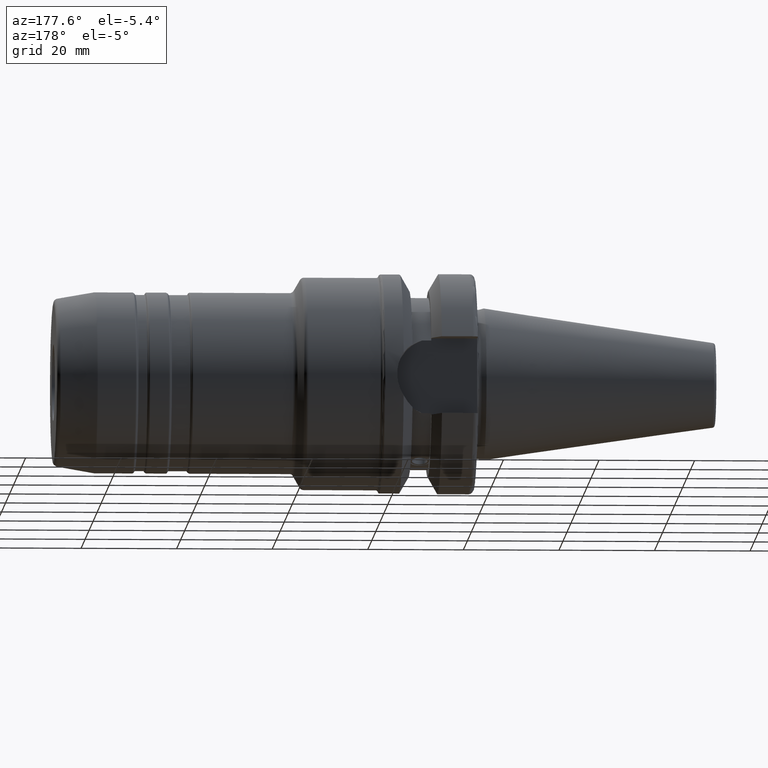
[diagram: clean part render]
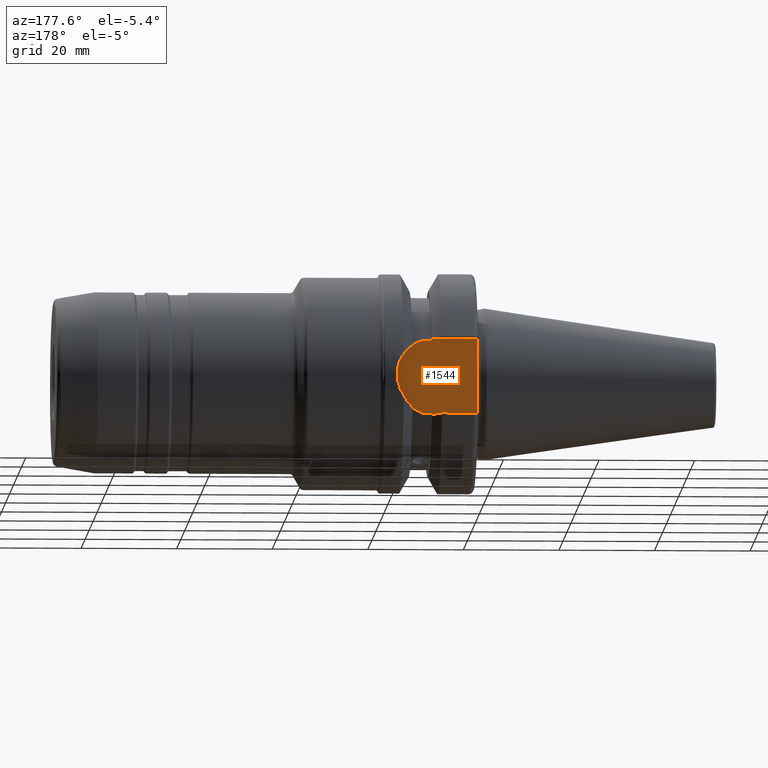
[diagram: same view with one face highlighted and labeled with its STEP entity id]
A machine part, auxiliary view. The second image highlights one B-rep face of the part: STEP entity #1544.
In plain terms, the highlighted planar face has unit normal (0, 1, 0).
Its self-contained STEP definition (entity closure, byte-faithful):
#96=PLANE('',#1766);
#140=LINE('',#2640,#213);
#146=LINE('',#2755,#219);
#152=LINE('',#2812,#225);
#174=LINE('',#2958,#247);
#180=LINE('',#3016,#253);
#182=LINE('',#3019,#255);
#183=LINE('',#3021,#256);
#213=VECTOR('',#2035,10.);
#219=VECTOR('',#2093,10.);
#225=VECTOR('',#2125,10.);
#247=VECTOR('',#2199,10.);
#253=VECTOR('',#2229,10.);
#255=VECTOR('',#2233,10.);
#256=VECTOR('',#2236,10.);
#376=FACE_OUTER_BOUND('',#478,.T.);
#478=EDGE_LOOP('',(#1363,#1364,#1365,#1366,#1367,#1368,#1369,#1370,#1371,
#1372));
#581=CIRCLE('',#1759,8.05);
#582=CIRCLE('',#1761,8.05);
#583=CIRCLE('',#1763,8.05);
#661=VERTEX_POINT('',#2632);
#662=VERTEX_POINT('',#2639);
#681=VERTEX_POINT('',#2752);
#682=VERTEX_POINT('',#2754);
#693=VERTEX_POINT('',#2809);
#694=VERTEX_POINT('',#2811);
#724=VERTEX_POINT('',#2956);
#728=VERTEX_POINT('',#2986);
#730=VERTEX_POINT('',#2989);
#732=VERTEX_POINT('',#2998);
#843=EDGE_CURVE('',#661,#662,#140,.T.);
#872=EDGE_CURVE('',#681,#682,#146,.T.);
#888=EDGE_CURVE('',#693,#694,#152,.T.);
#935=EDGE_CURVE('',#724,#681,#174,.T.);
#943=EDGE_CURVE('',#730,#728,#581,.T.);
#947=EDGE_CURVE('',#724,#732,#582,.T.);
#948=EDGE_CURVE('',#661,#682,#583,.T.);
#952=EDGE_CURVE('',#693,#730,#180,.T.);
#954=EDGE_CURVE('',#732,#694,#182,.T.);
#955=EDGE_CURVE('',#662,#728,#183,.T.);
#1363=ORIENTED_EDGE('',*,*,#872,.F.);
#1364=ORIENTED_EDGE('',*,*,#935,.F.);
#1365=ORIENTED_EDGE('',*,*,#947,.T.);
#1366=ORIENTED_EDGE('',*,*,#954,.T.);
#1367=ORIENTED_EDGE('',*,*,#888,.F.);
#1368=ORIENTED_EDGE('',*,*,#952,.T.);
#1369=ORIENTED_EDGE('',*,*,#943,.T.);
#1370=ORIENTED_EDGE('',*,*,#955,.F.);
#1371=ORIENTED_EDGE('',*,*,#843,.F.);
#1372=ORIENTED_EDGE('',*,*,#948,.T.);
#1544=ADVANCED_FACE('',(#376),#96,.T.);
#1759=AXIS2_PLACEMENT_3D('',#2990,#2214,#2215);
#1761=AXIS2_PLACEMENT_3D('',#3000,#2220,#2221);
#1763=AXIS2_PLACEMENT_3D('',#3002,#2224,#2225);
#1766=AXIS2_PLACEMENT_3D('',#3020,#2234,#2235);
#2035=DIRECTION('',(-1.,-1.62798202122572E-21,0.));
#2093=DIRECTION('',(1.,1.62798202122572E-21,0.));
#2125=DIRECTION('',(0.,0.,-1.));
#2199=DIRECTION('',(0.,0.,1.));
#2214=DIRECTION('center_axis',(0.,1.,0.));
#2215=DIRECTION('ref_axis',(0.,0.,1.));
#2220=DIRECTION('center_axis',(0.,1.,0.));
#2221=DIRECTION('ref_axis',(0.,0.,1.));
#2224=DIRECTION('center_axis',(0.,1.,0.));
#2225=DIRECTION('ref_axis',(0.,0.,1.));
#2229=DIRECTION('',(1.,0.,0.));
#2233=DIRECTION('',(-1.,0.,-4.96189061284986E-16));
#2234=DIRECTION('center_axis',(0.,1.,0.));
#2235=DIRECTION('ref_axis',(0.,0.,1.));
#2236=DIRECTION('',(0.,0.,1.));
#2632=CARTESIAN_POINT('',(13.4980384612482,16.3,7.636098480245));
#2639=CARTESIAN_POINT('',(11.6,16.3,7.636098480245));
#2640=CARTESIAN_POINT('',(13.6,16.3,7.636098480245));
#2752=CARTESIAN_POINT('',(11.6,16.3,-7.636098480245));
#2754=CARTESIAN_POINT('',(13.4980384612482,16.3,-7.636098480245));
#2755=CARTESIAN_POINT('',(13.6,16.3,-7.636098480245));
#2809=CARTESIAN_POINT('',(1.99999999999999,16.3,8.05));
#2811=CARTESIAN_POINT('',(1.99999999999999,16.3,-8.05));
#2812=CARTESIAN_POINT('',(1.99999999999999,16.3,0.));
#2956=CARTESIAN_POINT('',(11.6,16.3,-8.02371485036701));
#2958=CARTESIAN_POINT('',(11.6,16.3,0.));
#2986=CARTESIAN_POINT('',(11.6,16.3,8.02371485036701));
#2989=CARTESIAN_POINT('',(10.95,16.3,8.05));
#2990=CARTESIAN_POINT('Origin',(10.95,16.3,0.));
#2998=CARTESIAN_POINT('',(10.95,16.3,-8.05));
#3000=CARTESIAN_POINT('Origin',(10.95,16.3,0.));
#3002=CARTESIAN_POINT('Origin',(10.95,16.3,0.));
#3016=CARTESIAN_POINT('',(1.99999999999999,16.3,8.05));
#3019=CARTESIAN_POINT('',(10.95,16.3,-8.05));
#3020=CARTESIAN_POINT('Origin',(10.5,16.3,0.));
#3021=CARTESIAN_POINT('',(11.6,16.3,0.));